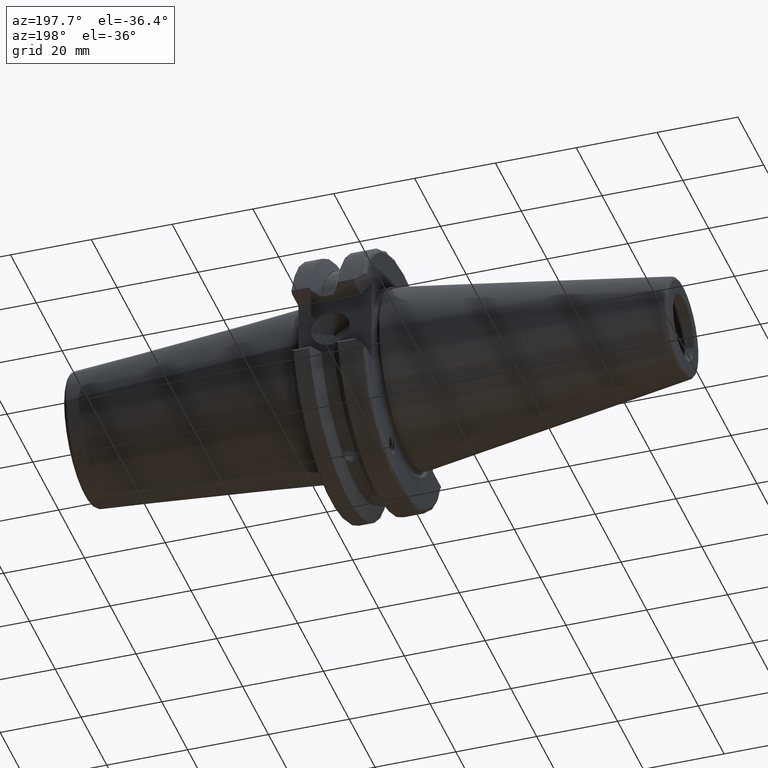
[diagram: clean part render]
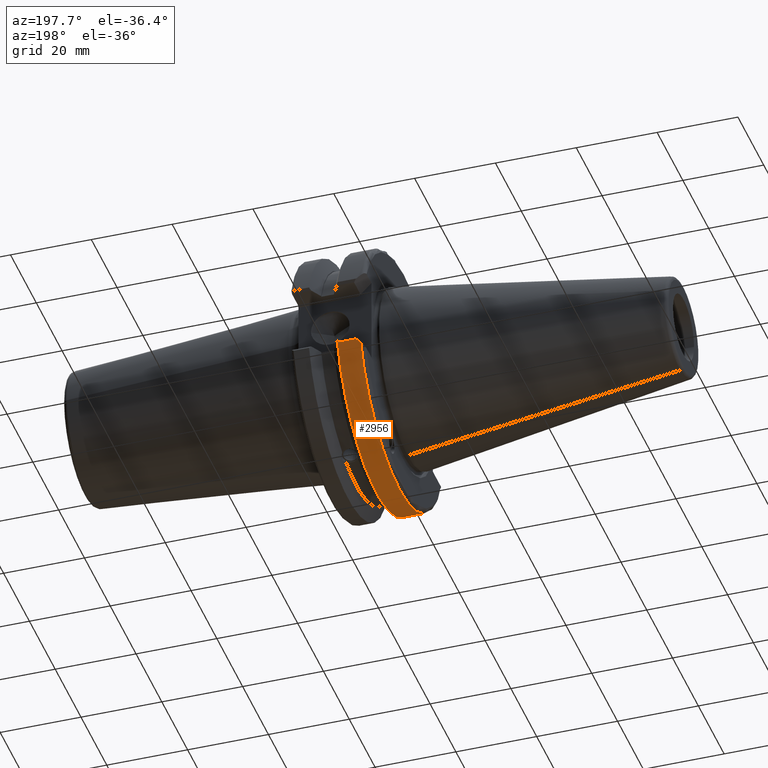
[diagram: same view with one face highlighted and labeled with its STEP entity id]
A machine part, auxiliary view. The second image highlights one B-rep face of the part: STEP entity #2956.
In plain terms, the highlighted cylindrical surface (partial cylindrical patch) has radius 31.75 mm, axis along (1, 0, 0).
Its self-contained STEP definition (entity closure, byte-faithful):
#572=DIRECTION('',(1.E0,0.E0,0.E0));
#573=VECTOR('',#572,4.588873230924E0);
#574=CARTESIAN_POINT('',(3.06096E0,3.049771389266E1,-8.82904E0));
#575=LINE('',#574,#573);
#576=CARTESIAN_POINT('',(2.E0,3.017035631212E1,-9.89E0));
#577=CARTESIAN_POINT('',(2.352653116158E0,3.028595784107E1,-9.537346883842E0));
#578=CARTESIAN_POINT('',(2.706311587220E0,3.039504373733E1,-9.183688412780E0));
#579=CARTESIAN_POINT('',(3.06096E0,3.049771389266E1,-8.82904E0));
#581=CARTESIAN_POINT('',(3.06096E0,-3.049771389266E1,-8.82904E0));
#582=CARTESIAN_POINT('',(2.706311587220E0,-3.039504373733E1,-9.183688412780E0));
#583=CARTESIAN_POINT('',(2.352653116158E0,-3.028595784107E1,-9.537346883842E0));
#584=CARTESIAN_POINT('',(2.E0,-3.017035631212E1,-9.89E0));
#586=DIRECTION('',(-1.E0,0.E0,0.E0));
#587=VECTOR('',#586,4.588873230924E0);
#588=CARTESIAN_POINT('',(7.649833230924E0,-3.049771389266E1,-8.82904E0));
#589=LINE('',#588,#587);
#653=CARTESIAN_POINT('',(7.649833230924E0,3.049771389266E1,-8.82904E0));
#659=CARTESIAN_POINT('',(7.649833230924E0,0.E0,0.E0));
#660=DIRECTION('',(-1.E0,0.E0,0.E0));
#661=DIRECTION('',(0.E0,9.605579178790E-1,-2.7808E-1));
#662=AXIS2_PLACEMENT_3D('',#659,#660,#661);
#668=CARTESIAN_POINT('',(7.649833230924E0,-3.049771389266E1,-8.82904E0));
#1200=CARTESIAN_POINT('',(2.E0,0.E0,0.E0));
#1201=DIRECTION('',(1.E0,0.E0,0.E0));
#1202=DIRECTION('',(0.E0,-9.502474429013E-1,-3.114960629921E-1));
#1203=AXIS2_PLACEMENT_3D('',#1200,#1201,#1202);
#1214=CARTESIAN_POINT('',(2.E0,3.017035631212E1,-9.89E0));
#1244=CARTESIAN_POINT('',(2.E0,-3.017035631212E1,-9.89E0));
#1871=VERTEX_POINT('',#1214);
#1874=VERTEX_POINT('',#1244);
#1879=VERTEX_POINT('',#653);
#1883=CARTESIAN_POINT('',(3.06096E0,3.049771389266E1,-8.82904E0));
#1884=VERTEX_POINT('',#1883);
#1924=CARTESIAN_POINT('',(3.06096E0,-3.049771389266E1,-8.82904E0));
#1926=VERTEX_POINT('',#1924);
#1930=VERTEX_POINT('',#668);
#2937=CARTESIAN_POINT('',(9.75E-2,0.E0,0.E0));
#2938=DIRECTION('',(1.E0,0.E0,0.E0));
#2939=DIRECTION('',(0.E0,0.E0,1.E0));
#2940=AXIS2_PLACEMENT_3D('',#2937,#2938,#2939);
#2941=CYLINDRICAL_SURFACE('',#2940,3.175E1);
#2943=ORIENTED_EDGE('',*,*,#2942,.F.);
#2945=ORIENTED_EDGE('',*,*,#2944,.F.);
#2947=ORIENTED_EDGE('',*,*,#2946,.F.);
#2949=ORIENTED_EDGE('',*,*,#2948,.F.);
#2951=ORIENTED_EDGE('',*,*,#2950,.F.);
#2953=ORIENTED_EDGE('',*,*,#2952,.F.);
#2954=EDGE_LOOP('',(#2943,#2945,#2947,#2949,#2951,#2953));
#2955=FACE_OUTER_BOUND('',#2954,.F.);
#2956=ADVANCED_FACE('',(#2955),#2941,.T.);
#580=B_SPLINE_CURVE_WITH_KNOTS('',3,(#576,#577,#578,#579),.UNSPECIFIED.,.F.,.F.,
(4,4),(0.E0,1.E0),.UNSPECIFIED.);
#585=B_SPLINE_CURVE_WITH_KNOTS('',3,(#581,#582,#583,#584),.UNSPECIFIED.,.F.,.F.,
(4,4),(0.E0,1.E0),.UNSPECIFIED.);
#663=CIRCLE('',#662,3.175E1);
#1204=CIRCLE('',#1203,3.175E1);
#2942=EDGE_CURVE('',#1884,#1879,#575,.T.);
#2944=EDGE_CURVE('',#1871,#1884,#580,.T.);
#2946=EDGE_CURVE('',#1874,#1871,#1204,.T.);
#2948=EDGE_CURVE('',#1926,#1874,#585,.T.);
#2950=EDGE_CURVE('',#1930,#1926,#589,.T.);
#2952=EDGE_CURVE('',#1879,#1930,#663,.T.);